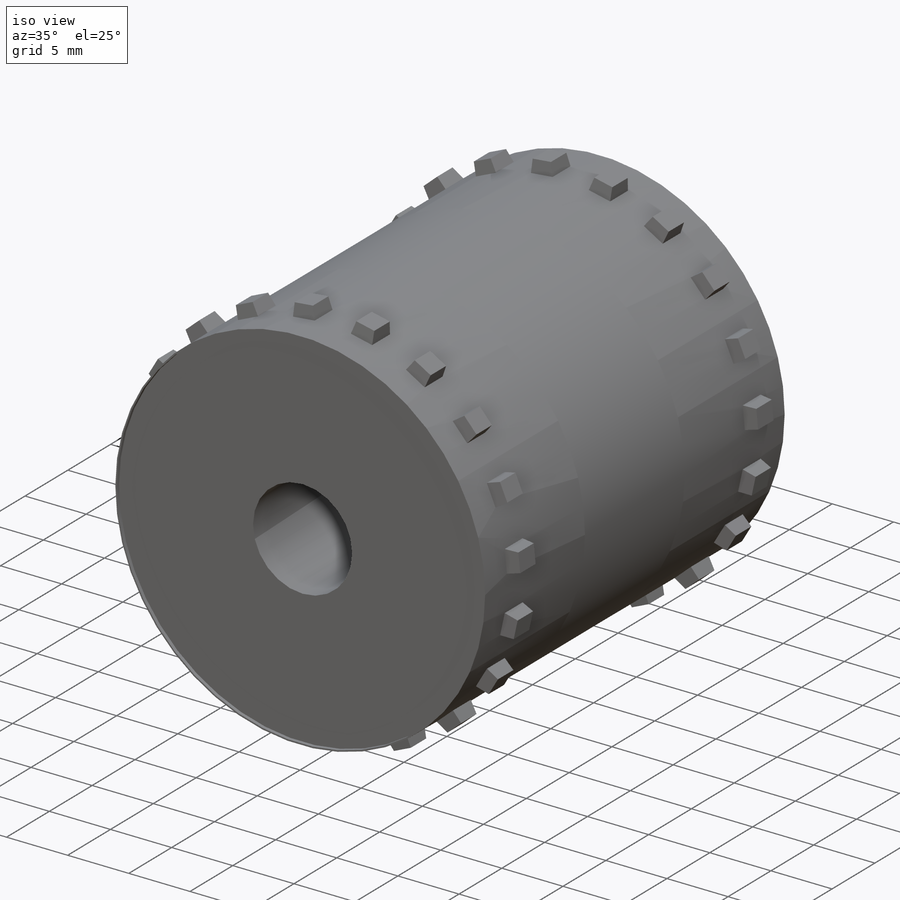
[diagram: iso view]
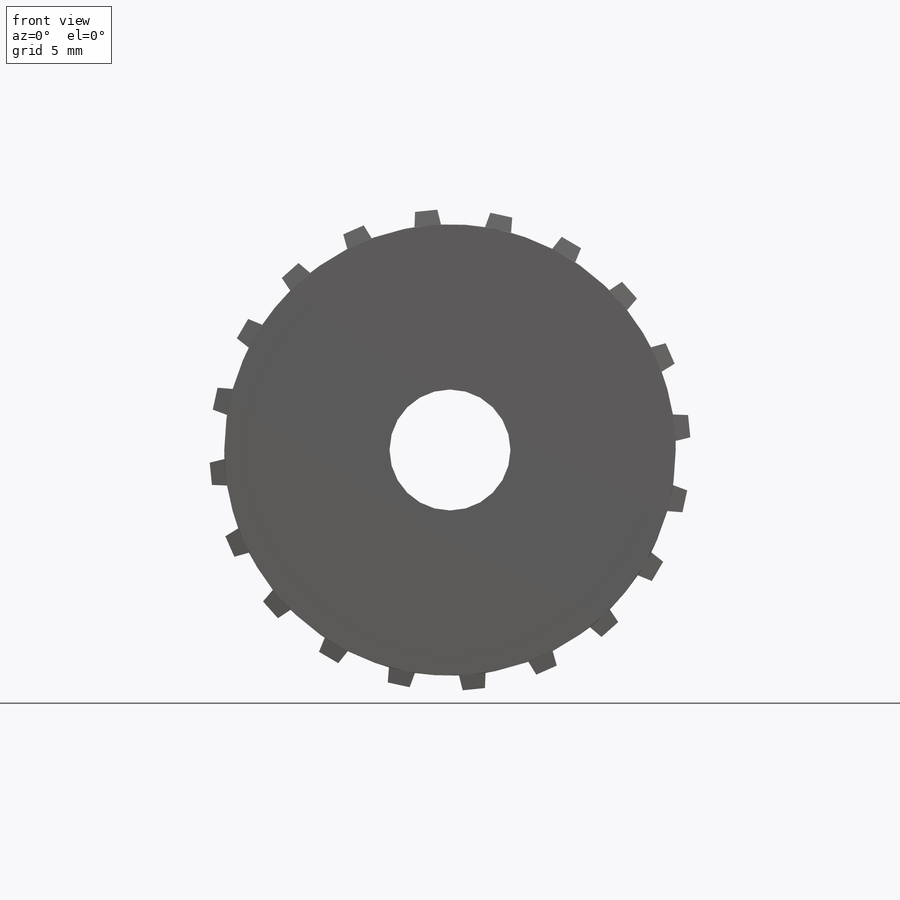
[diagram: front view]
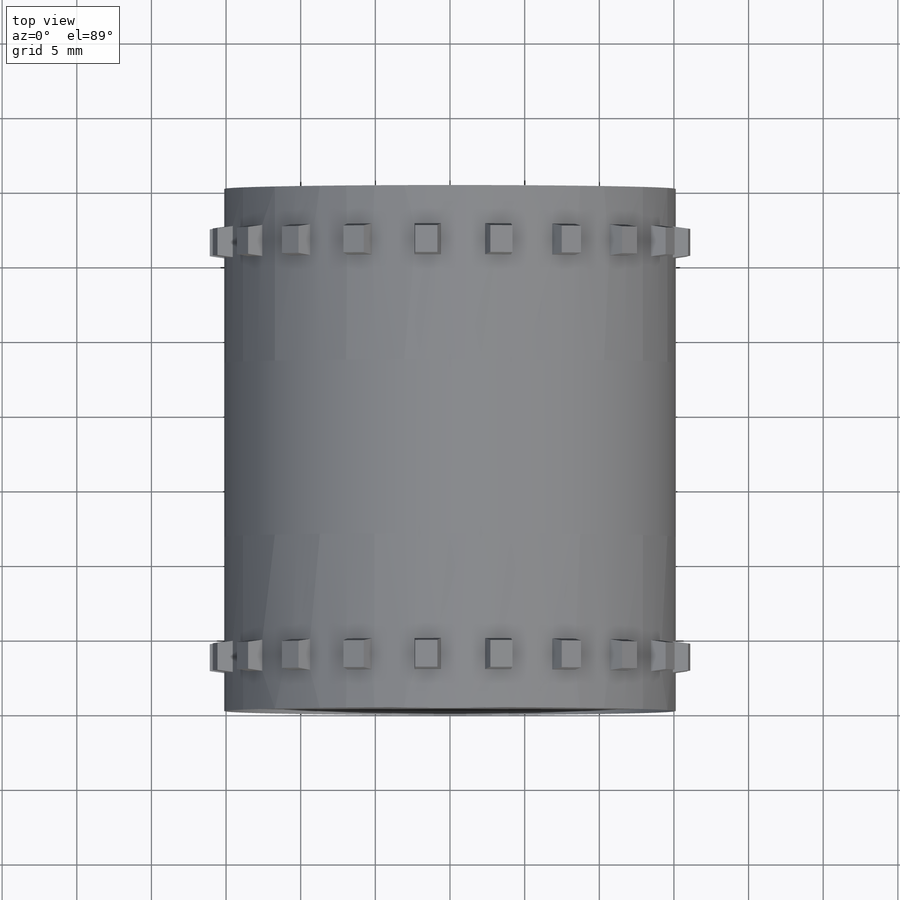
[diagram: top view]
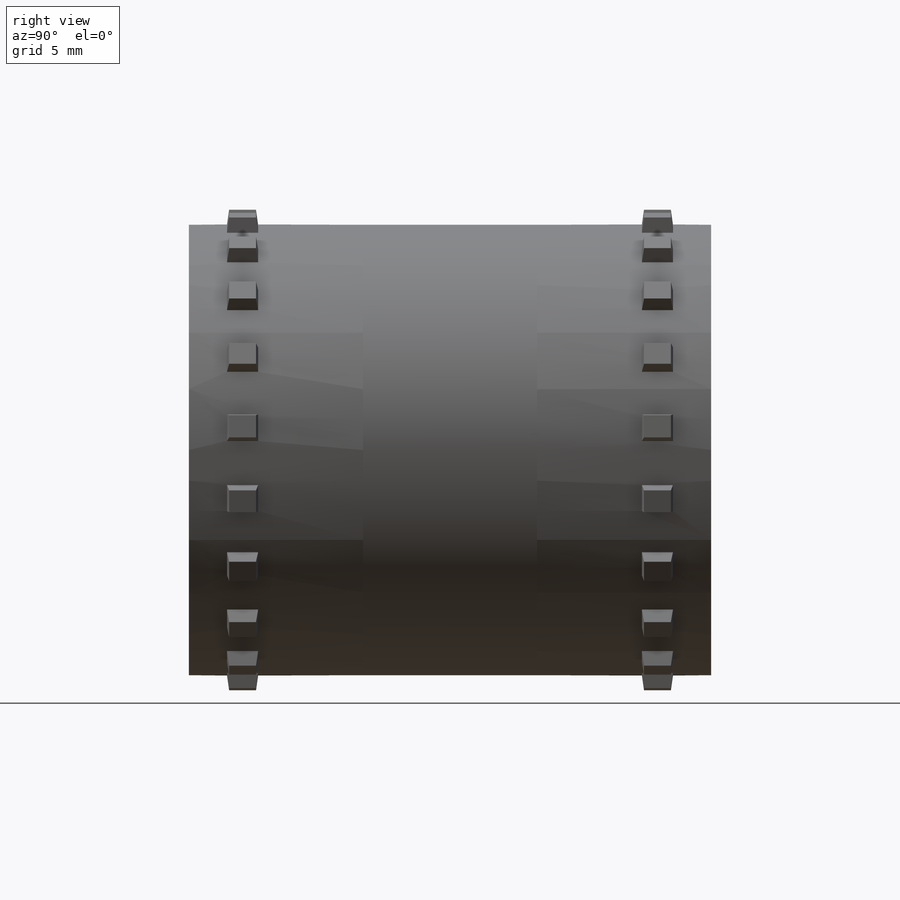
[diagram: right view]
SOLIDWORKS PART (.sldprt)
format: sldprt  version: not decoded by parser v0  size: 399,872 bytes
history: native  units: mm
features: sketch x7, cut_extrude x3, plane x3, extrude x2, material x1, pattern_circular x1, mirror x1 (+13 scaffold rows collapsed)
feature tree (31):
  scaffold x13  (default folders/planes/origin — collapsed)
  material  "Material <not specified>"
  sketch  "Profile Sketch"  dims[D1=30.24mm]
  extrude  "Profile Extrude"  Depth=34.98mm
  sketch  "Bore Sketch"  dims[D1=8.1mm]
  cut_extrude  "Bore Cut"  [1 undecoded]
  sketch  "Bearing Pocket 1 Sketch"  dims[D1=~0.11811mm]
  cut_extrude  "Bearing Pocket 1 Cut"  Depth=0.275787mm
  sketch  "Bearing Pocket 2 Sketch"  dims[c1.D1=~8.100009mm c1.D2=25.4mm c2.D1=~0.11811mm]
  cut_extrude  "Bearing Pocket 2 Cut"  Depth=0.275787mm
  plane  "Cylinder Tanget Plane"
  sketch  "Cylinder Tangent Centering Sketch"  dims[D1=37.0mm]
  plane  "Cylinder Cross Section Plane"
  sketch  "Cylinder Cross Section Sketch"
  sketch  "3DSketch1"  dims[c1.D1=2.695mm c1.D2=1.0mm c1.D3=1.5mm c1.D4=~0.866903mm c1.D5=~1.593404mm c2.D4=~0.147637mm c3.D4=90.0deg]
  extrude  "Boss-Extrude1"  Depth=1.8mm
  pattern_circular  "CirPattern1"  Count=20 Angle=360deg
  plane  "Plane2"  Offset=17.49mm
  mirror  "Mirror1"
decode coverage: 11 of 14 modeling features carry decoded parameters
note: ~ marks probable driven/reference dimensions
note: 1 parameter value undecoded
note: suppression state not decoded; provenance and decode notes live in map.json
